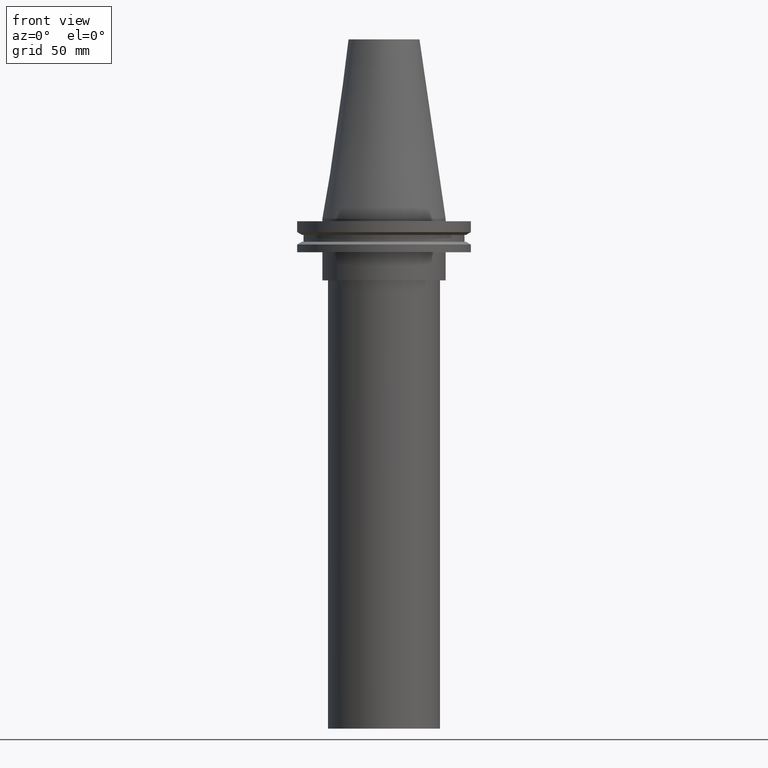
[diagram: clean part render]
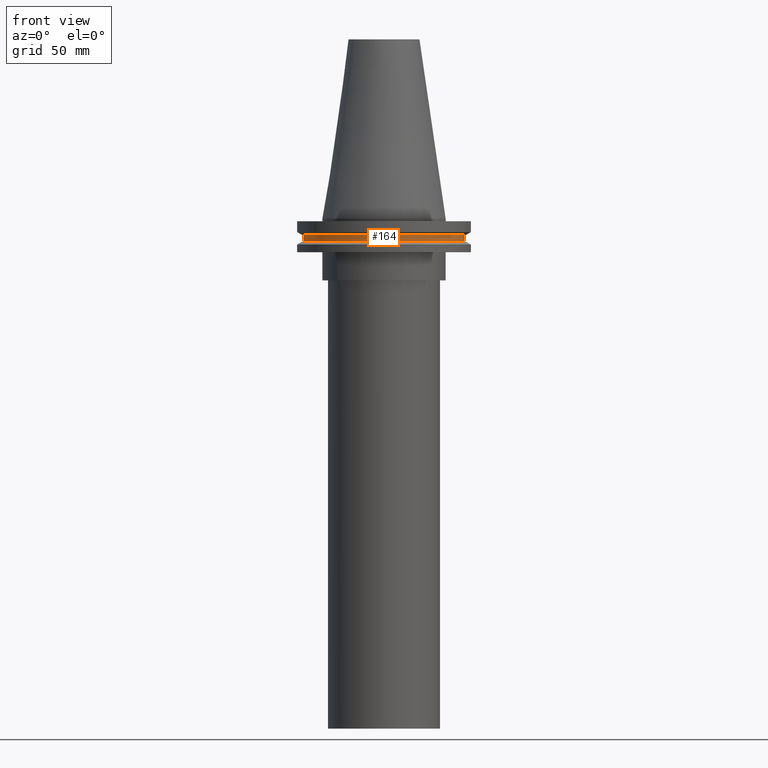
[diagram: same view with one face highlighted and labeled with its STEP entity id]
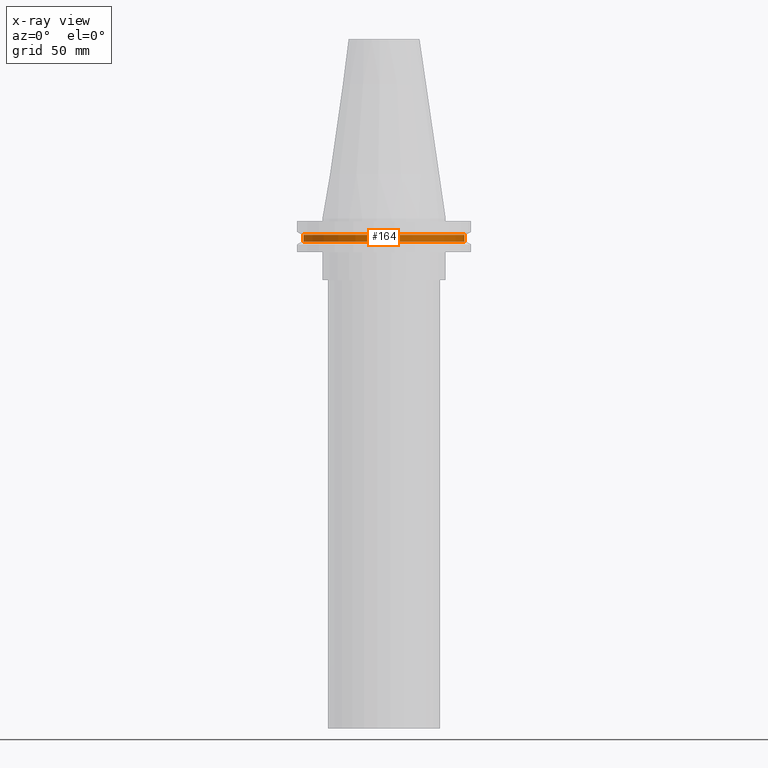
[diagram: x-ray of the same camera — body ghosted, the highlighted face saturated]
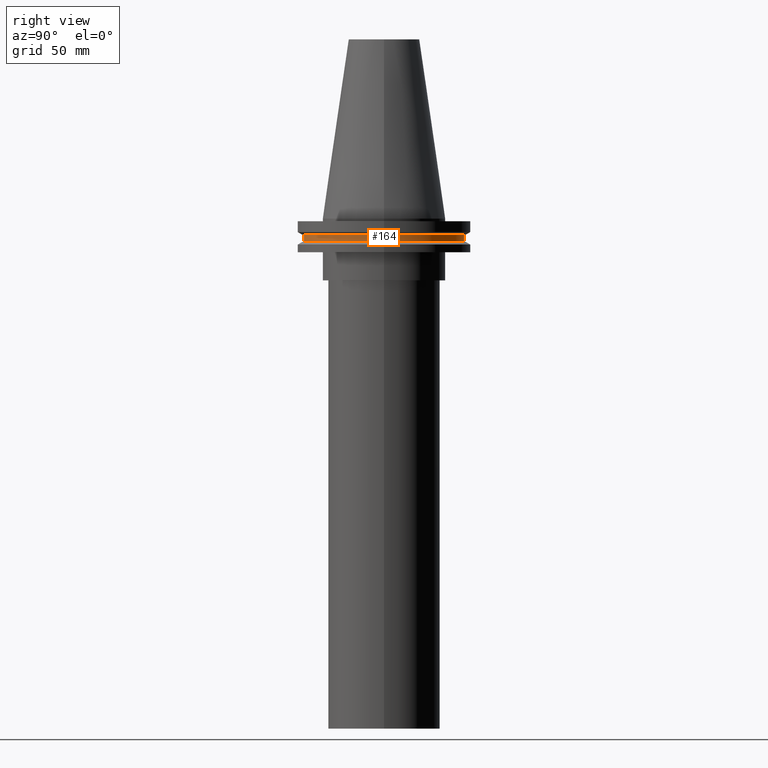
[diagram: same view with one face highlighted and labeled with its STEP entity id]
A machine part, front view. The second image highlights one B-rep face of the part: STEP entity #164.
The next image is the same camera in x-ray: the body ghosted, the highlighted face saturated — about 0% of this face is hidden behind the body in this view.
A second angle (right view) of the same face is appended — the face is thin or edge-on in the first view.
In plain terms, the highlighted cylindrical surface (bore or boss wall) has radius 45.645 mm, axis along (-0, -0, 1).
Its self-contained STEP definition (entity closure, byte-faithful):
#20 = EDGE_CURVE ( 'NONE', #358, #358, #240, .T. ) ;
#38 = AXIS2_PLACEMENT_3D ( 'NONE', #201, #356, #85 ) ;
#53 = DIRECTION ( 'NONE',  ( -0.000000000000000000, -0.000000000000000000, 1.000000000000000000 ) ) ;
#62 = AXIS2_PLACEMENT_3D ( 'NONE', #244, #344, #367 ) ;
#85 = DIRECTION ( 'NONE',  ( 1.000000000000000000, 0.000000000000000000, 0.000000000000000000 ) ) ;
#86 = CYLINDRICAL_SURFACE ( 'NONE', #38, 45.64500000000000313 ) ;
#102 = ORIENTED_EDGE ( 'NONE', *, *, #20, .T. ) ;
#109 = EDGE_CURVE ( 'NONE', #306, #306, #382, .T. ) ;
#113 = FACE_OUTER_BOUND ( 'NONE', #119, .T. ) ;
#119 = EDGE_LOOP ( 'NONE', ( #331 ) ) ;
#131 = AXIS2_PLACEMENT_3D ( 'NONE', #138, #53, #168 ) ;
#138 = CARTESIAN_POINT ( 'NONE',  ( 0.000000000000000000, 0.000000000000000000, -9.204999999999991189 ) ) ;
#150 = CARTESIAN_POINT ( 'NONE',  ( 45.64500000000000313, 0.000000000000000000, -13.05499999999999794 ) ) ;
#164 = ADVANCED_FACE ( 'NONE', ( #113, #294 ), #86, .T. ) ;
#168 = DIRECTION ( 'NONE',  ( 1.000000000000000000, 0.000000000000000000, 0.000000000000000000 ) ) ;
#201 = CARTESIAN_POINT ( 'NONE',  ( 0.000000000000000000, 0.000000000000000000, 101.5999999999999943 ) ) ;
#240 = CIRCLE ( 'NONE', #62, 45.64500000000000313 ) ;
#244 = CARTESIAN_POINT ( 'NONE',  ( 0.000000000000000000, 0.000000000000000000, -13.05499999999999794 ) ) ;
#275 = CARTESIAN_POINT ( 'NONE',  ( 45.64500000000000313, 0.000000000000000000, -9.204999999999991189 ) ) ;
#294 = FACE_OUTER_BOUND ( 'NONE', #371, .T. ) ;
#306 = VERTEX_POINT ( 'NONE', #275 ) ;
#331 = ORIENTED_EDGE ( 'NONE', *, *, #109, .F. ) ;
#344 = DIRECTION ( 'NONE',  ( -0.000000000000000000, -0.000000000000000000, 1.000000000000000000 ) ) ;
#356 = DIRECTION ( 'NONE',  ( -0.000000000000000000, -0.000000000000000000, 1.000000000000000000 ) ) ;
#358 = VERTEX_POINT ( 'NONE', #150 ) ;
#367 = DIRECTION ( 'NONE',  ( 1.000000000000000000, 0.000000000000000000, 0.000000000000000000 ) ) ;
#371 = EDGE_LOOP ( 'NONE', ( #102 ) ) ;
#382 = CIRCLE ( 'NONE', #131, 45.64500000000000313 ) ;